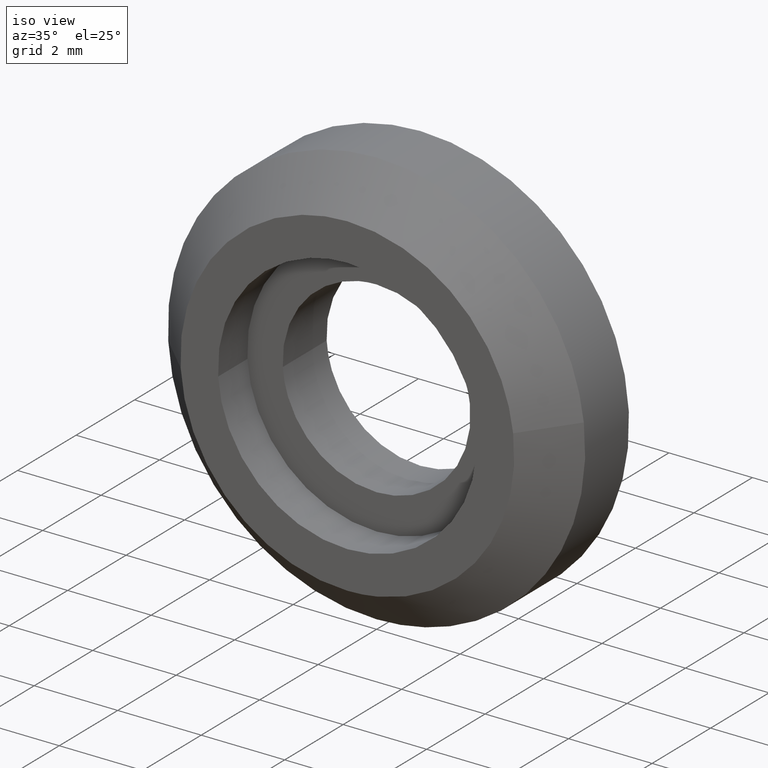
[diagram: clean part render]
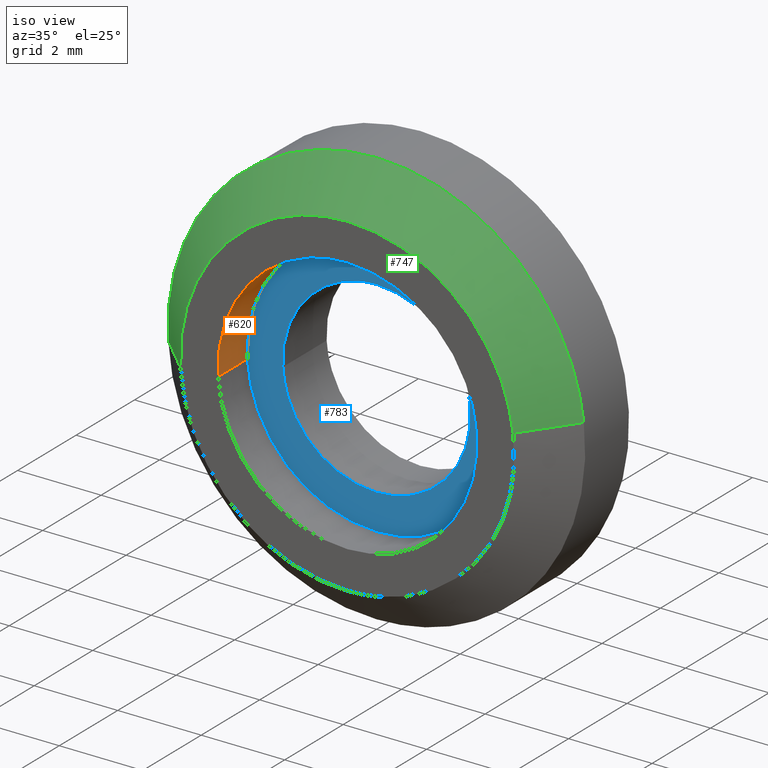
[diagram: same view with three faces highlighted in distinct colors, each labeled with its STEP entity id]
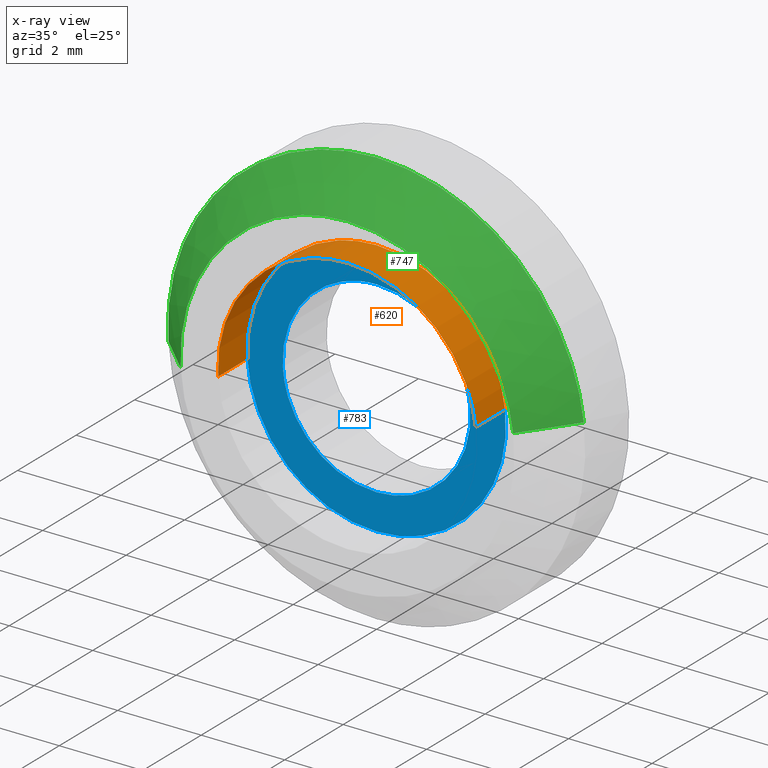
[diagram: x-ray of the same camera — body ghosted, the three highlighted faces saturated]
A machine part, iso view with three faces highlighted in distinct colors.
The next image is the same camera in x-ray (body ghosted, the three faces saturated) — at least one of them is partly hidden behind the body in this view.
Their STEP definitions:

[orange] entity #620 — the highlighted face is a freeform B-spline surface patch.
#457=CARTESIAN_POINT('',(3.078329725640056,1.929746E-014,0.365904496061632));
#458=VERTEX_POINT('',#457);
#476=CARTESIAN_POINT('',(-3.094218017339230,2.874610E-014,-0.189248147065834));
#477=VERTEX_POINT('',#476);
#491=CARTESIAN_POINT('',(-3.094218015582970,-1.0,-0.189248175781133));
#492=VERTEX_POINT('',#491);
#493=CARTESIAN_POINT('',(-3.094218015582970,-1.0,-0.189248175781133));
#494=CARTESIAN_POINT('',(-3.094218017339230,2.874610E-014,-0.189248147065834));
#495=QUASI_UNIFORM_CURVE('',1,(#493,#494),.UNSPECIFIED.,.F.,.U.);
#496=EDGE_CURVE('',#492,#477,#495,.T.);
#513=CARTESIAN_POINT('',(3.078329723245384,-1.0,0.365904516207934));
#514=VERTEX_POINT('',#513);
#530=CARTESIAN_POINT('',(3.078329723245384,-1.0,0.365904516207934));
#531=CARTESIAN_POINT('',(3.078329725640056,1.929746E-014,0.365904496061632));
#532=QUASI_UNIFORM_CURVE('',1,(#530,#531),.UNSPECIFIED.,.F.,.U.);
#533=EDGE_CURVE('',#514,#458,#532,.T.);
#538=CARTESIAN_POINT('',(-3.094217875107787,-1.025000000000000,-0.189250472558057));
#539=CARTESIAN_POINT('',(-3.283468347665843,-1.025000000000000,2.904967402549729));
#540=CARTESIAN_POINT('',(-0.189250472558057,-1.025000000000000,3.094217875107787));
#541=CARTESIAN_POINT('',(2.732784821602453,-1.025000000000000,3.272937209870835));
#542=CARTESIAN_POINT('',(3.078329531727365,-1.025000000000000,0.365906127435951));
#543=CARTESIAN_POINT('',(-3.094217875107787,0.025625000000000,-0.189250472558057));
#544=CARTESIAN_POINT('',(-3.283468347665843,0.025625000000000,2.904967402549729));
#545=CARTESIAN_POINT('',(-0.189250472558057,0.025625000000000,3.094217875107787));
#546=CARTESIAN_POINT('',(2.732784821602453,0.025625000000000,3.272937209870835));
#547=CARTESIAN_POINT('',(3.078329531727365,0.025625000000000,0.365906127435951));
#555=(BOUNDED_SURFACE()B_SPLINE_SURFACE(2,1,((#538,#543),(#539,#544),(#540,#545),(#541,#546),(#542,#547)),.UNSPECIFIED.,.F.,.F.,.U.)B_SPLINE_SURFACE_WITH_KNOTS((3,2,3),(2,2),(0.0,5.136248173426377,10.067046419915700),(0.0,1.0),.UNSPECIFIED.)GEOMETRIC_REPRESENTATION_ITEM()RATIONAL_B_SPLINE_SURFACE(((1.0,1.0),(0.707106781186548,0.707106781186548),(1.0,1.0),(0.718822509939086,0.718822509939086),(0.977505800795127,0.977505800795127)))REPRESENTATION_ITEM('')SURFACE());
#556=CARTESIAN_POINT('',(0.0,0.0,3.100000000000000));
#557=VERTEX_POINT('',#556);
#558=CARTESIAN_POINT('',(0.0,0.0,3.100000000000000));
#559=CARTESIAN_POINT('',(2.753342499866643,0.0,3.100000000000000));
#560=CARTESIAN_POINT('',(3.078329725640056,1.929746E-014,0.365904496061632));
#568=(BOUNDED_CURVE()B_SPLINE_CURVE(2,(#558,#559,#560),.UNSPECIFIED.,.F.,.U.)B_SPLINE_CURVE_WITH_KNOTS((3,3),(0.0,0.229562563079665),.UNSPECIFIED.)CURVE()GEOMETRIC_REPRESENTATION_ITEM()RATIONAL_B_SPLINE_CURVE((1.0,0.731050727922123,0.956026929737107))REPRESENTATION_ITEM(''));
#569=EDGE_CURVE('',#557,#458,#568,.T.);
#570=ORIENTED_EDGE('',*,*,#569,.T.);
#571=ORIENTED_EDGE('',*,*,#533,.F.);
#572=CARTESIAN_POINT('',(0.0,-1.0,3.100000000000000));
#573=VERTEX_POINT('',#572);
#574=CARTESIAN_POINT('',(0.0,-1.0,3.100000000000000));
#575=CARTESIAN_POINT('',(2.753342481720389,-1.0,3.100000000000000));
#576=CARTESIAN_POINT('',(3.078329723245385,-1.0,0.365904516207934));
#584=(BOUNDED_CURVE()B_SPLINE_CURVE(2,(#574,#575,#576),.UNSPECIFIED.,.F.,.U.)B_SPLINE_CURVE_WITH_KNOTS((3,3),(0.0,0.229562561973614),.UNSPECIFIED.)CURVE()GEOMETRIC_REPRESENTATION_ITEM()RATIONAL_B_SPLINE_CURVE((1.0,0.731050729217943,0.956026927569199))REPRESENTATION_ITEM(''));
#585=EDGE_CURVE('',#573,#514,#584,.T.);
#586=ORIENTED_EDGE('',*,*,#585,.F.);
#587=CARTESIAN_POINT('',(-3.094218015582970,-1.0,-0.189248175781133));
#588=CARTESIAN_POINT('',(-3.100000000000000,-1.0,-0.094712414617259));
#589=CARTESIAN_POINT('',(-3.100000000000000,-1.0,0.0));
#590=CARTESIAN_POINT('',(-3.100000000000000,-1.0,3.100000000000000));
#591=CARTESIAN_POINT('',(0.0,-1.0,3.100000000000000));
#599=(BOUNDED_CURVE()B_SPLINE_CURVE(2,(#587,#588,#589,#590,#591),.UNSPECIFIED.,.F.,.U.)B_SPLINE_CURVE_WITH_KNOTS((3,2,3),(0.739333090320061,0.750000000000000,1.0),.UNSPECIFIED.)CURVE()GEOMETRIC_REPRESENTATION_ITEM()RATIONAL_B_SPLINE_CURVE((0.976072316169088,0.987502937956201,1.0,0.707106781186547,1.0))REPRESENTATION_ITEM(''));
#600=EDGE_CURVE('',#492,#573,#599,.T.);
#601=ORIENTED_EDGE('',*,*,#600,.F.);
#602=ORIENTED_EDGE('',*,*,#496,.T.);
#603=CARTESIAN_POINT('',(-3.094218017339231,2.874610E-014,-0.189248147065834));
#604=CARTESIAN_POINT('',(-3.100000000000000,0.0,-0.094712400219355));
#605=CARTESIAN_POINT('',(-3.100000000000000,0.0,0.0));
#606=CARTESIAN_POINT('',(-3.100000000000000,0.0,3.100000000000000));
#607=CARTESIAN_POINT('',(0.0,0.0,3.100000000000000));
#615=(BOUNDED_CURVE()B_SPLINE_CURVE(2,(#603,#604,#605,#606,#607),.UNSPECIFIED.,.F.,.U.)B_SPLINE_CURVE_WITH_KNOTS((3,2,3),(0.739333091921349,0.750000000000000,1.0),.UNSPECIFIED.)CURVE()GEOMETRIC_REPRESENTATION_ITEM()RATIONAL_B_SPLINE_CURVE((0.976072319600957,0.987502939832226,1.0,0.707106781186547,1.0))REPRESENTATION_ITEM(''));
#616=EDGE_CURVE('',#477,#557,#615,.T.);
#617=ORIENTED_EDGE('',*,*,#616,.T.);
#618=EDGE_LOOP('',(#570,#571,#586,#601,#602,#617));
#619=FACE_OUTER_BOUND('',#618,.T.);
#620=ADVANCED_FACE('',(#619),#555,.F.);

[blue] entity #783 — the highlighted face is a freeform B-spline surface patch.
#305=CARTESIAN_POINT('',(-2.245803518071988,3.469447E-017,-0.137355590356938));
#306=VERTEX_POINT('',#305);
#312=CARTESIAN_POINT('',(0.0,0.0,-2.250000000000000));
#313=VERTEX_POINT('',#312);
#314=CARTESIAN_POINT('',(0.0,0.0,-2.250000000000000));
#315=CARTESIAN_POINT('',(-2.116592072030913,0.0,-2.250000000000000));
#316=CARTESIAN_POINT('',(-2.245803518071988,3.469447E-017,-0.137355590356937));
#324=(BOUNDED_CURVE()B_SPLINE_CURVE(2,(#314,#315,#316),.UNSPECIFIED.,.F.,.U.)B_SPLINE_CURVE_WITH_KNOTS((3,3),(0.500000000000000,0.739333240645724),.UNSPECIFIED.)CURVE()GEOMETRIC_REPRESENTATION_ITEM()RATIONAL_B_SPLINE_CURVE((1.0,0.719603667112877,0.976072638346172))REPRESENTATION_ITEM(''));
#325=EDGE_CURVE('',#313,#306,#324,.T.);
#327=CARTESIAN_POINT('',(2.234271803154819,3.194357E-017,0.265573924957907));
#328=VERTEX_POINT('',#327);
#329=CARTESIAN_POINT('',(2.234271803154818,3.194357E-017,0.265573924957907));
#330=CARTESIAN_POINT('',(2.250000000000000,0.0,0.133252701304857));
#331=CARTESIAN_POINT('',(2.250000000000000,0.0,0.0));
#332=CARTESIAN_POINT('',(2.250000000000000,0.0,-2.250000000000000));
#333=CARTESIAN_POINT('',(0.0,0.0,-2.250000000000000));
#341=(BOUNDED_CURVE()B_SPLINE_CURVE(2,(#329,#330,#331,#332,#333),.UNSPECIFIED.,.F.,.U.)B_SPLINE_CURVE_WITH_KNOTS((3,2,3),(0.229562708232189,0.250000000000000,0.500000000000000),.UNSPECIFIED.)CURVE()GEOMETRIC_REPRESENTATION_ITEM()RATIONAL_B_SPLINE_CURVE((0.956027214242435,0.976056223321185,1.0,0.707106781186547,1.0))REPRESENTATION_ITEM(''));
#342=EDGE_CURVE('',#328,#313,#341,.T.);
#386=CARTESIAN_POINT('',(0.0,0.0,2.250000000000000));
#387=VERTEX_POINT('',#386);
#388=CARTESIAN_POINT('',(0.0,0.0,2.250000000000000));
#389=CARTESIAN_POINT('',(1.998395478354626,0.0,2.250000000000001));
#390=CARTESIAN_POINT('',(2.234271803154818,3.194357E-017,0.265573924957907));
#398=(BOUNDED_CURVE()B_SPLINE_CURVE(2,(#388,#389,#390),.UNSPECIFIED.,.F.,.U.)B_SPLINE_CURVE_WITH_KNOTS((3,3),(0.0,0.229562708232189),.UNSPECIFIED.)CURVE()GEOMETRIC_REPRESENTATION_ITEM()RATIONAL_B_SPLINE_CURVE((1.0,0.731050557865363,0.956027214242435))REPRESENTATION_ITEM(''));
#399=EDGE_CURVE('',#387,#328,#398,.T.);
#401=CARTESIAN_POINT('',(-2.245803518071988,3.469447E-017,-0.137355590356937));
#402=CARTESIAN_POINT('',(-2.250000000000000,0.0,-0.068741900543697));
#403=CARTESIAN_POINT('',(-2.250000000000000,0.0,0.0));
#404=CARTESIAN_POINT('',(-2.250000000000000,0.0,2.250000000000000));
#405=CARTESIAN_POINT('',(0.0,0.0,2.250000000000000));
#413=(BOUNDED_CURVE()B_SPLINE_CURVE(2,(#401,#402,#403,#404,#405),.UNSPECIFIED.,.F.,.U.)B_SPLINE_CURVE_WITH_KNOTS((3,2,3),(0.739333240645724,0.750000000000000,1.0),.UNSPECIFIED.)CURVE()GEOMETRIC_REPRESENTATION_ITEM()RATIONAL_B_SPLINE_CURVE((0.976072638346172,0.987503114073670,1.0,0.707106781186547,1.0))REPRESENTATION_ITEM(''));
#414=EDGE_CURVE('',#306,#387,#413,.T.);
#457=CARTESIAN_POINT('',(3.078329725640056,1.929746E-014,0.365904496061632));
#458=VERTEX_POINT('',#457);
#459=CARTESIAN_POINT('',(0.0,0.0,-3.100000000000000));
#460=VERTEX_POINT('',#459);
#461=CARTESIAN_POINT('',(3.078329725640056,1.929746E-014,0.365904496061632));
#462=CARTESIAN_POINT('',(3.100000000000001,0.0,0.183593946610486));
#463=CARTESIAN_POINT('',(3.100000000000000,0.0,0.0));
#464=CARTESIAN_POINT('',(3.100000000000000,0.0,-3.100000000000000));
#465=CARTESIAN_POINT('',(0.0,0.0,-3.100000000000000));
#473=(BOUNDED_CURVE()B_SPLINE_CURVE(2,(#461,#462,#463,#464,#465),.UNSPECIFIED.,.F.,.U.)B_SPLINE_CURVE_WITH_KNOTS((3,2,3),(0.229562563079665,0.250000000000000,0.500000000000000),.UNSPECIFIED.)CURVE()GEOMETRIC_REPRESENTATION_ITEM()RATIONAL_B_SPLINE_CURVE((0.956026929737107,0.976056053264425,1.0,0.707106781186547,1.0))REPRESENTATION_ITEM(''));
#474=EDGE_CURVE('',#458,#460,#473,.T.);
#476=CARTESIAN_POINT('',(-3.094218017339230,2.874610E-014,-0.189248147065834));
#477=VERTEX_POINT('',#476);
#478=CARTESIAN_POINT('',(0.0,0.0,-3.100000000000000));
#479=CARTESIAN_POINT('',(-2.916191003196507,0.0,-3.100000000000000));
#480=CARTESIAN_POINT('',(-3.094218017339231,2.874610E-014,-0.189248147065834));
#488=(BOUNDED_CURVE()B_SPLINE_CURVE(2,(#478,#479,#480),.UNSPECIFIED.,.F.,.U.)B_SPLINE_CURVE_WITH_KNOTS((3,3),(0.500000000000000,0.739333091921349),.UNSPECIFIED.)CURVE()GEOMETRIC_REPRESENTATION_ITEM()RATIONAL_B_SPLINE_CURVE((1.0,0.719603841354321,0.976072319600957))REPRESENTATION_ITEM(''));
#489=EDGE_CURVE('',#460,#477,#488,.T.);
#556=CARTESIAN_POINT('',(0.0,0.0,3.100000000000000));
#557=VERTEX_POINT('',#556);
#558=CARTESIAN_POINT('',(0.0,0.0,3.100000000000000));
#559=CARTESIAN_POINT('',(2.753342499866643,0.0,3.100000000000000));
#560=CARTESIAN_POINT('',(3.078329725640056,1.929746E-014,0.365904496061632));
#568=(BOUNDED_CURVE()B_SPLINE_CURVE(2,(#558,#559,#560),.UNSPECIFIED.,.F.,.U.)B_SPLINE_CURVE_WITH_KNOTS((3,3),(0.0,0.229562563079665),.UNSPECIFIED.)CURVE()GEOMETRIC_REPRESENTATION_ITEM()RATIONAL_B_SPLINE_CURVE((1.0,0.731050727922123,0.956026929737107))REPRESENTATION_ITEM(''));
#569=EDGE_CURVE('',#557,#458,#568,.T.);
#603=CARTESIAN_POINT('',(-3.094218017339231,2.874610E-014,-0.189248147065834));
#604=CARTESIAN_POINT('',(-3.100000000000000,0.0,-0.094712400219355));
#605=CARTESIAN_POINT('',(-3.100000000000000,0.0,0.0));
#606=CARTESIAN_POINT('',(-3.100000000000000,0.0,3.100000000000000));
#607=CARTESIAN_POINT('',(0.0,0.0,3.100000000000000));
#615=(BOUNDED_CURVE()B_SPLINE_CURVE(2,(#603,#604,#605,#606,#607),.UNSPECIFIED.,.F.,.U.)B_SPLINE_CURVE_WITH_KNOTS((3,2,3),(0.739333091921349,0.750000000000000,1.0),.UNSPECIFIED.)CURVE()GEOMETRIC_REPRESENTATION_ITEM()RATIONAL_B_SPLINE_CURVE((0.976072319600957,0.987502939832226,1.0,0.707106781186547,1.0))REPRESENTATION_ITEM(''));
#616=EDGE_CURVE('',#477,#557,#615,.T.);
#766=CARTESIAN_POINT('',(-3.409614536738630,0.0,3.409689907631278));
#767=CARTESIAN_POINT('',(-3.409614536738630,0.0,-3.409689685901999));
#768=CARTESIAN_POINT('',(3.409633605456586,0.0,3.409689907631278));
#769=CARTESIAN_POINT('',(3.409633605456586,0.0,-3.409689685901999));
#770=B_SPLINE_SURFACE_WITH_KNOTS('',1,1,((#766,#768),(#767,#769)),.UNSPECIFIED.,.F.,.F.,.U.,(2,2),(2,2),(0.0,6.819379593533277),(0.0,6.819248142195216),.UNSPECIFIED.);
#771=ORIENTED_EDGE('',*,*,#616,.F.);
#772=ORIENTED_EDGE('',*,*,#489,.F.);
#773=ORIENTED_EDGE('',*,*,#474,.F.);
#774=ORIENTED_EDGE('',*,*,#569,.F.);
#775=EDGE_LOOP('',(#771,#772,#773,#774));
#776=FACE_OUTER_BOUND('',#775,.T.);
#777=ORIENTED_EDGE('',*,*,#325,.T.);
#778=ORIENTED_EDGE('',*,*,#414,.T.);
#779=ORIENTED_EDGE('',*,*,#399,.T.);
#780=ORIENTED_EDGE('',*,*,#342,.T.);
#781=EDGE_LOOP('',(#777,#778,#779,#780));
#782=FACE_BOUND('',#781,.T.);
#783=ADVANCED_FACE('',(#776,#782),#770,.T.);

[green] entity #747 — the highlighted face is a freeform B-spline surface patch.
#79=CARTESIAN_POINT('',(-4.990673992109418,2.867984E-013,-0.305242697675468));
#80=VERTEX_POINT('',#79);
#161=CARTESIAN_POINT('',(4.965047631818395,9.866747E-013,0.590171173291608));
#162=VERTEX_POINT('',#161);
#212=CARTESIAN_POINT('',(0.0,0.0,5.0));
#213=VERTEX_POINT('',#212);
#214=CARTESIAN_POINT('',(-4.990673992109418,2.867984E-013,-0.305242697675468));
#215=CARTESIAN_POINT('',(-5.0,0.0,-0.152763816495298));
#216=CARTESIAN_POINT('',(-5.0,0.0,0.0));
#217=CARTESIAN_POINT('',(-5.000000000000001,0.0,5.000000000000001));
#218=CARTESIAN_POINT('',(0.0,0.0,5.0));
#226=(BOUNDED_CURVE()B_SPLINE_CURVE(2,(#214,#215,#216,#217,#218),.UNSPECIFIED.,.F.,.U.)B_SPLINE_CURVE_WITH_KNOTS((3,2,3),(0.739332962241806,0.750000000000000,1.0),.UNSPECIFIED.)CURVE()GEOMETRIC_REPRESENTATION_ITEM()RATIONAL_B_SPLINE_CURVE((0.976072041672854,0.987502787903192,1.0,0.707106781186548,1.0))REPRESENTATION_ITEM(''));
#227=EDGE_CURVE('',#80,#213,#226,.T.);
#229=CARTESIAN_POINT('',(0.0,0.0,5.0));
#230=CARTESIAN_POINT('',(4.440872629742970,0.0,4.999999999999999));
#231=CARTESIAN_POINT('',(4.965047631818397,9.866747E-013,0.590171173291608));
#239=(BOUNDED_CURVE()B_SPLINE_CURVE(2,(#229,#230,#231),.UNSPECIFIED.,.F.,.U.)B_SPLINE_CURVE_WITH_KNOTS((3,3),(0.0,0.229562473515120),.UNSPECIFIED.)CURVE()GEOMETRIC_REPRESENTATION_ITEM()RATIONAL_B_SPLINE_CURVE((1.0,0.731050832853514,0.956026754186859))REPRESENTATION_ITEM(''));
#240=EDGE_CURVE('',#213,#162,#239,.T.);
#643=CARTESIAN_POINT('',(3.972038105454676,-0.999999999999833,0.472136938628357));
#644=VERTEX_POINT('',#643);
#662=CARTESIAN_POINT('',(-3.992538569656476,-1.000000655735983,-0.244193619731834));
#663=VERTEX_POINT('',#662);
#677=CARTESIAN_POINT('',(-3.992538569656476,-1.000000655735983,-0.244193619731834));
#678=CARTESIAN_POINT('',(-4.990673992109418,2.867984E-013,-0.305242697675468));
#679=QUASI_UNIFORM_CURVE('',1,(#677,#678),.UNSPECIFIED.,.F.,.U.);
#680=EDGE_CURVE('',#663,#80,#679,.T.);
#685=CARTESIAN_POINT('',(3.972038105454676,-0.999999999999833,0.472136938628357));
#686=CARTESIAN_POINT('',(4.965047631818395,9.866747E-013,0.590171173291608));
#687=QUASI_UNIFORM_CURVE('',1,(#685,#686),.UNSPECIFIED.,.F.,.U.);
#688=EDGE_CURVE('',#644,#162,#687,.T.);
#693=CARTESIAN_POINT('',(-3.967585823726919,-1.025000000000000,-0.242667944651057));
#694=CARTESIAN_POINT('',(-4.210253768377976,-1.025000000000000,3.724917879075863));
#695=CARTESIAN_POINT('',(-0.242667944651057,-1.025000000000000,3.967585823726919));
#696=CARTESIAN_POINT('',(3.504135376087016,-1.025000000000000,4.196750132011795));
#697=CARTESIAN_POINT('',(3.947212867295573,-1.025000000000000,0.469186082760615));
#698=CARTESIAN_POINT('',(-5.016251196318892,0.025625000000000,-0.306807066499866));
#699=CARTESIAN_POINT('',(-5.323058262818757,0.025625000000000,4.709444129819027));
#700=CARTESIAN_POINT('',(-0.306807066499866,0.025625000000000,5.016251196318892));
#701=CARTESIAN_POINT('',(4.430307006150265,0.025625000000000,5.305985504953906));
#702=CARTESIAN_POINT('',(4.990493500931398,0.025625000000000,0.593195800546872));
#710=(BOUNDED_SURFACE()B_SPLINE_SURFACE(2,1,((#693,#698),(#694,#699),(#695,#700),(#696,#701),(#697,#702)),.UNSPECIFIED.,.F.,.F.,.U.)B_SPLINE_SURFACE_WITH_KNOTS((3,2,3),(2,2),(0.0,8.326728137605139,16.320387149706072),(0.0,1.0),.UNSPECIFIED.)GEOMETRIC_REPRESENTATION_ITEM()RATIONAL_B_SPLINE_SURFACE(((1.0,1.0),(0.707106781186548,0.707106781186548),(1.0,1.0),(0.718822509939086,0.718822509939086),(0.977505800795127,0.977505800795127)))REPRESENTATION_ITEM('')SURFACE());
#711=CARTESIAN_POINT('',(0.0,-1.0,4.0));
#712=VERTEX_POINT('',#711);
#713=CARTESIAN_POINT('',(0.0,-1.0,4.0));
#714=CARTESIAN_POINT('',(3.552698103803122,-1.0,4.000000000000000));
#715=CARTESIAN_POINT('',(3.972038105454676,-0.999999999999833,0.472136938628357));
#723=(BOUNDED_CURVE()B_SPLINE_CURVE(2,(#713,#714,#715),.UNSPECIFIED.,.F.,.U.)B_SPLINE_CURVE_WITH_KNOTS((3,3),(0.0,0.229562473515533),.UNSPECIFIED.)CURVE()GEOMETRIC_REPRESENTATION_ITEM()RATIONAL_B_SPLINE_CURVE((1.0,0.731050832853030,0.956026754187668))REPRESENTATION_ITEM(''));
#724=EDGE_CURVE('',#712,#644,#723,.T.);
#725=ORIENTED_EDGE('',*,*,#724,.T.);
#726=ORIENTED_EDGE('',*,*,#688,.T.);
#727=ORIENTED_EDGE('',*,*,#240,.F.);
#728=ORIENTED_EDGE('',*,*,#227,.F.);
#729=ORIENTED_EDGE('',*,*,#680,.F.);
#730=CARTESIAN_POINT('',(-3.992538569656476,-1.000000655735983,-0.244193619731833));
#731=CARTESIAN_POINT('',(-4.000000000000001,-1.0,-0.122210803307649));
#732=CARTESIAN_POINT('',(-4.0,-1.0,0.0));
#733=CARTESIAN_POINT('',(-4.000000000000000,-1.0,4.000000000000000));
#734=CARTESIAN_POINT('',(0.0,-1.0,4.0));
#742=(BOUNDED_CURVE()B_SPLINE_CURVE(2,(#730,#731,#732,#733,#734),.UNSPECIFIED.,.F.,.U.)B_SPLINE_CURVE_WITH_KNOTS((3,2,3),(0.739332983780438,0.750000000000000,1.0),.UNSPECIFIED.)CURVE()GEOMETRIC_REPRESENTATION_ITEM()RATIONAL_B_SPLINE_CURVE((0.976072087834246,0.987502813137269,1.0,0.707106781186548,1.0))REPRESENTATION_ITEM(''));
#743=EDGE_CURVE('',#663,#712,#742,.T.);
#744=ORIENTED_EDGE('',*,*,#743,.T.);
#745=EDGE_LOOP('',(#725,#726,#727,#728,#729,#744));
#746=FACE_OUTER_BOUND('',#745,.T.);
#747=ADVANCED_FACE('',(#746),#710,.T.);